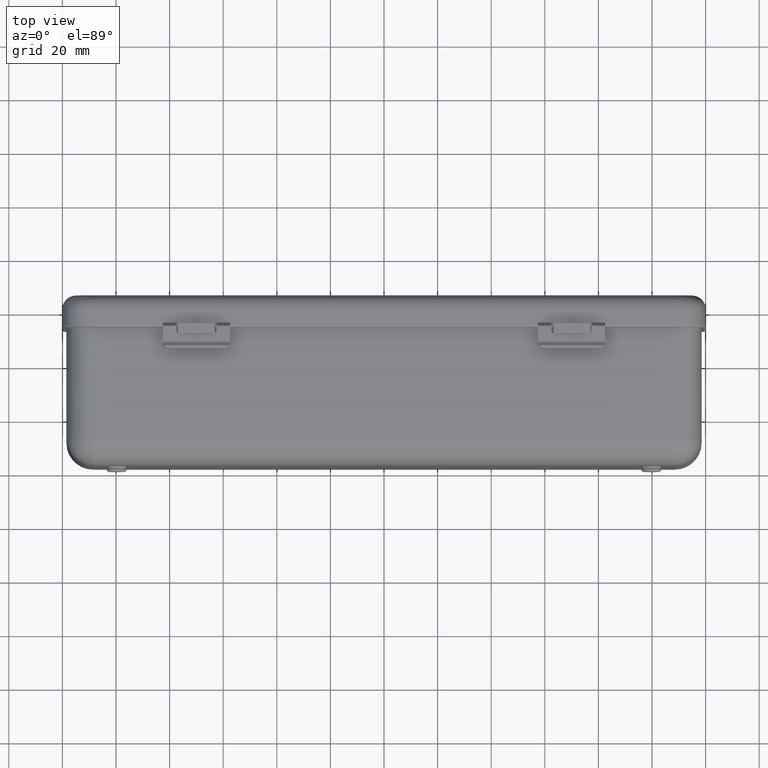
[diagram: clean part render]
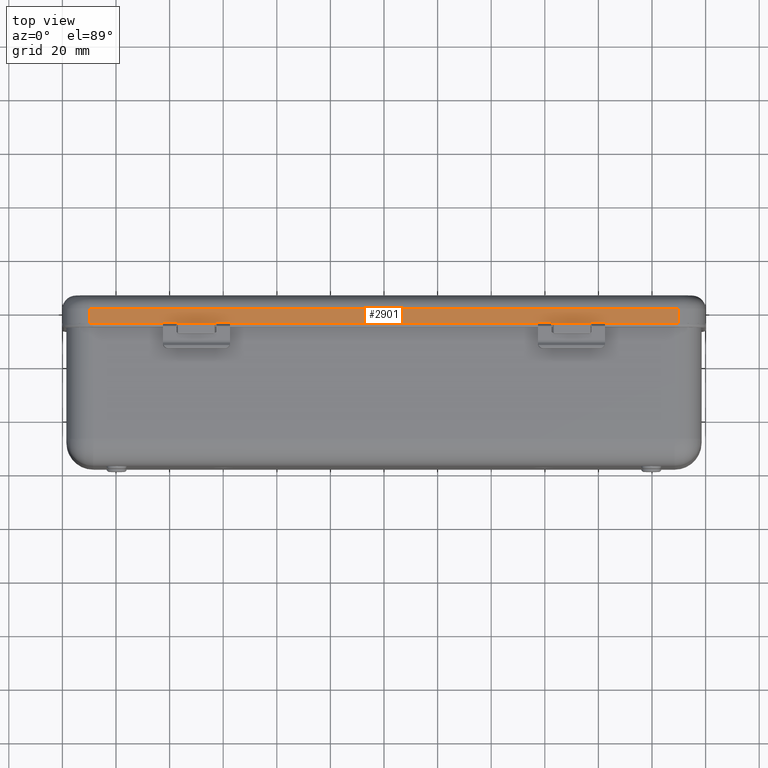
[diagram: same view with one face highlighted and labeled with its STEP entity id]
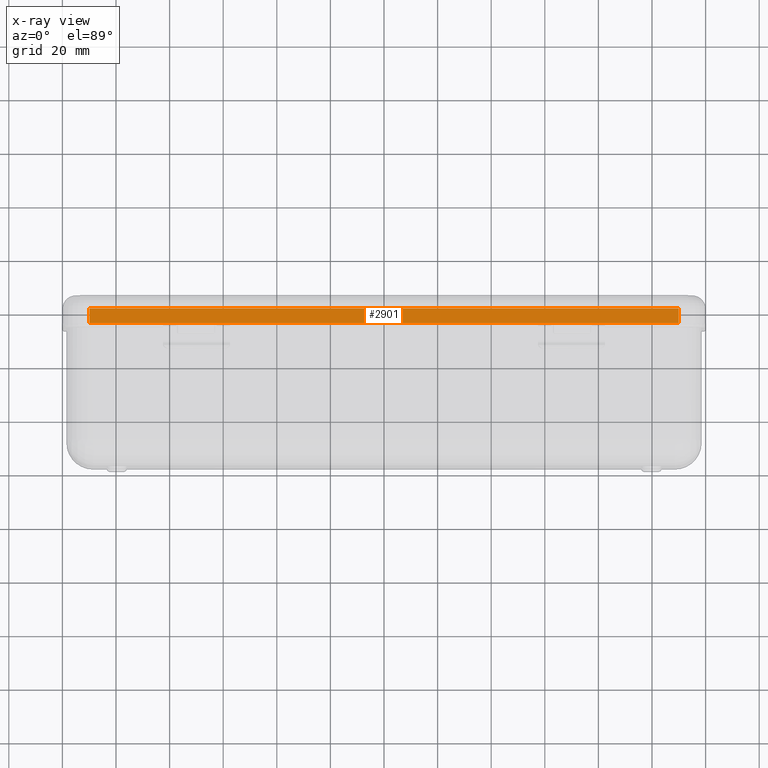
[diagram: x-ray of the same camera — body ghosted, the highlighted face saturated]
A machine part, top view. The second image highlights one B-rep face of the part: STEP entity #2901.
The next image is the same camera in x-ray: the body ghosted, the highlighted face saturated — about 0% of this face is hidden behind the body in this view.
In plain terms, the highlighted planar face has unit normal (0, 0, -1).
Its self-contained STEP definition (entity closure, byte-faithful):
#181 = CARTESIAN_POINT ( 'NONE',  ( 109.9999999999999858, 10.50000000000000000, -53.00000000000000000 ) ) ;
#278 = VERTEX_POINT ( 'NONE', #3284 ) ;
#599 = DIRECTION ( 'NONE',  ( -1.000000000000000000, 0.0000000000000000000, 0.0000000000000000000 ) ) ;
#635 = CARTESIAN_POINT ( 'NONE',  ( -110.0000000000000000, 5.000000000000000000, -53.00000000000000000 ) ) ;
#940 = EDGE_CURVE ( 'NONE', #6783, #7125, #5101, .T. ) ;
#1344 = CARTESIAN_POINT ( 'NONE',  ( -110.0000000000000000, 5.000000000000000000, -53.00000000000000000 ) ) ;
#2323 = VERTEX_POINT ( 'NONE', #635 ) ;
#2690 = ORIENTED_EDGE ( 'NONE', *, *, #4712, .T. ) ;
#2901 = ADVANCED_FACE ( 'NONE', ( #6259 ), #4782, .F. ) ;
#3284 = CARTESIAN_POINT ( 'NONE',  ( 109.9999999999999858, 5.000000000000000000, -53.00000000000000000 ) ) ;
#3669 = CARTESIAN_POINT ( 'NONE',  ( -120.0000000000000000, 10.50000000000000000, -53.00000000000000000 ) ) ;
#4141 = AXIS2_PLACEMENT_3D ( 'NONE', #6085, #9002, #5381 ) ;
#4574 = VECTOR ( 'NONE', #5675, 1000.000000000000000 ) ;
#4645 = ORIENTED_EDGE ( 'NONE', *, *, #7597, .T. ) ;
#4712 = EDGE_CURVE ( 'NONE', #2323, #7125, #5501, .T. ) ;
#4782 = PLANE ( 'NONE',  #4141 ) ;
#4971 = VECTOR ( 'NONE', #5905, 1000.000000000000000 ) ;
#5101 = LINE ( 'NONE', #3669, #7369 ) ;
#5339 = ORIENTED_EDGE ( 'NONE', *, *, #7939, .T. ) ;
#5381 = DIRECTION ( 'NONE',  ( 1.000000000000000000, 0.0000000000000000000, -0.0000000000000000000 ) ) ;
#5501 = LINE ( 'NONE', #7085, #4574 ) ;
#5675 = DIRECTION ( 'NONE',  ( -0.0000000000000000000, 1.000000000000000000, -0.0000000000000000000 ) ) ;
#5905 = DIRECTION ( 'NONE',  ( 0.0000000000000000000, -1.000000000000000000, 0.0000000000000000000 ) ) ;
#6010 = VECTOR ( 'NONE', #599, 1000.000000000000000 ) ;
#6085 = CARTESIAN_POINT ( 'NONE',  ( -120.0000000000000000, 10.50000000000000000, -53.00000000000000000 ) ) ;
#6259 = FACE_OUTER_BOUND ( 'NONE', #7602, .T. ) ;
#6702 = LINE ( 'NONE', #181, #4971 ) ;
#6729 = CARTESIAN_POINT ( 'NONE',  ( -110.0000000000000000, 10.50000000000000000, -53.00000000000000000 ) ) ;
#6783 = VERTEX_POINT ( 'NONE', #8916 ) ;
#7085 = CARTESIAN_POINT ( 'NONE',  ( -110.0000000000000000, 10.50000000000000000, -53.00000000000000000 ) ) ;
#7125 = VERTEX_POINT ( 'NONE', #6729 ) ;
#7369 = VECTOR ( 'NONE', #8481, 1000.000000000000000 ) ;
#7597 = EDGE_CURVE ( 'NONE', #278, #2323, #8402, .T. ) ;
#7602 = EDGE_LOOP ( 'NONE', ( #5339, #4645, #2690, #8460 ) ) ;
#7939 = EDGE_CURVE ( 'NONE', #6783, #278, #6702, .T. ) ;
#8402 = LINE ( 'NONE', #1344, #6010 ) ;
#8460 = ORIENTED_EDGE ( 'NONE', *, *, #940, .F. ) ;
#8481 = DIRECTION ( 'NONE',  ( -1.000000000000000000, -0.0000000000000000000, -0.0000000000000000000 ) ) ;
#8916 = CARTESIAN_POINT ( 'NONE',  ( 109.9999999999999858, 10.50000000000000000, -53.00000000000000000 ) ) ;
#9002 = DIRECTION ( 'NONE',  ( 0.0000000000000000000, 0.0000000000000000000, 1.000000000000000000 ) ) ;